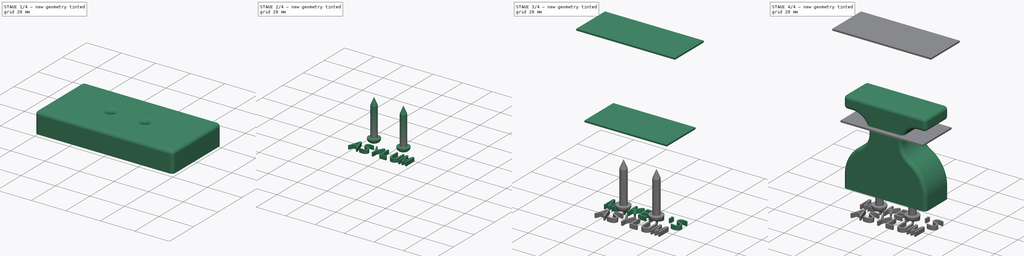
[diagram: build sequence overview — one tinted view per stage of 4, left to right]
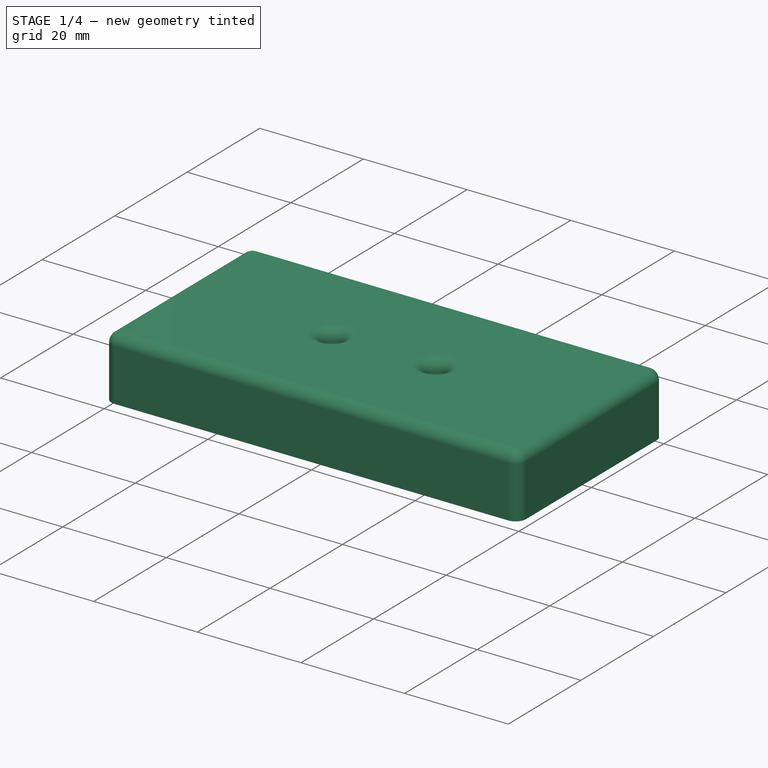
[diagram: stage 1 of 4 — iso view after this stage's code; geometry added in this stage tinted green]
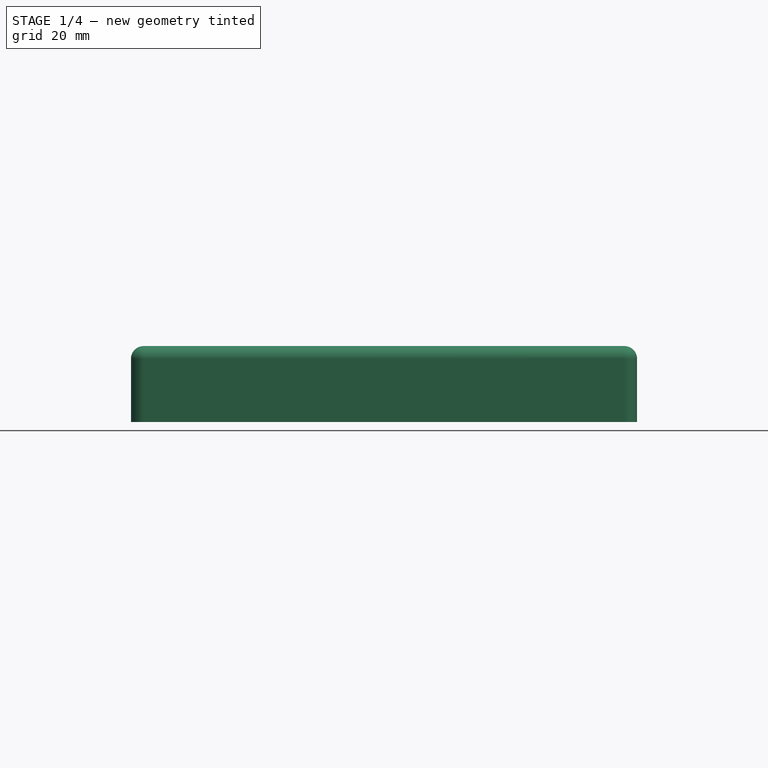
[diagram: stage 1 of 4 — front view after this stage's code; geometry added in this stage tinted green]
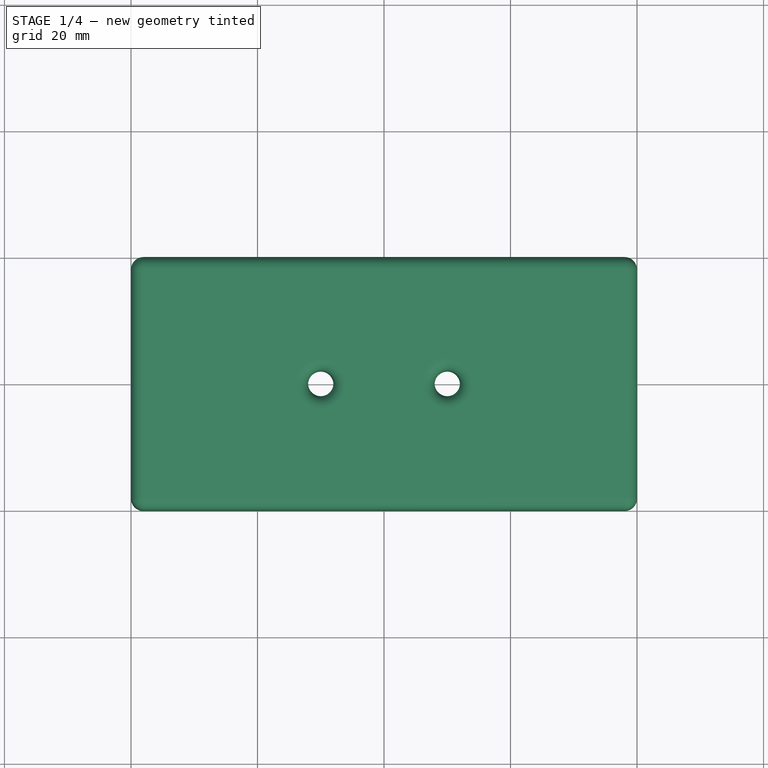
[diagram: stage 1 of 4 — top view after this stage's code; geometry added in this stage tinted green]
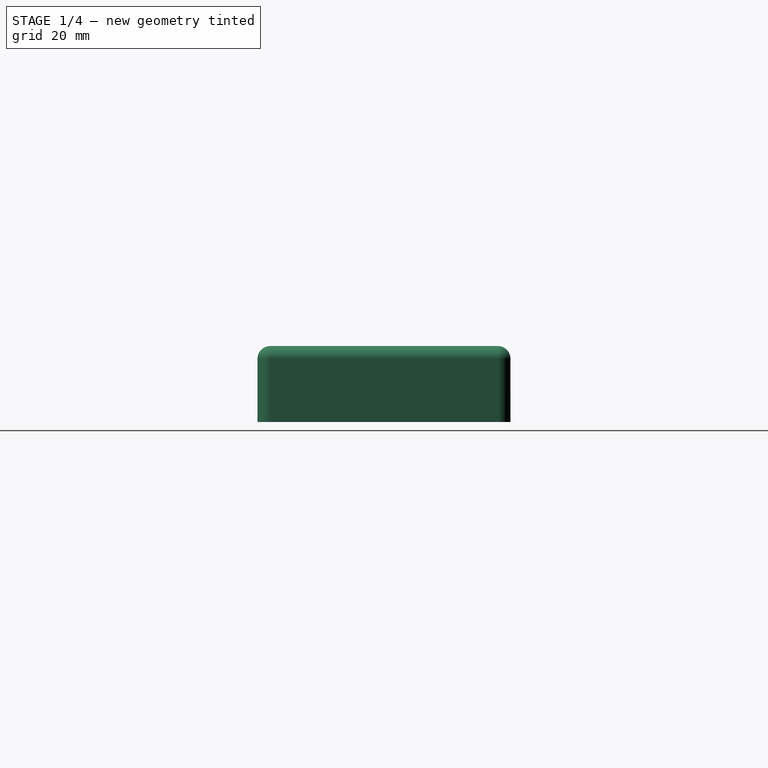
[diagram: stage 1 of 4 — right view after this stage's code; geometry added in this stage tinted green]
FCSTD DOCUMENT  (FreeCAD 1.0R39285 (Git))
Label: Woodshop_stamp_template_01
License: CERN Open Hardware Licence permissive
LicenseURL: https://cern-ohl.web.cern.ch/
objects: Sketcher::SketchObject×6, TechDraw::DrawProjGroupItem×5, App::DocumentObjectGroupPython×5, PartDesign::Pad×4, PartDesign::Body×4, Part::Feature×4, TechDraw::DrawViewDimension×3, TechDraw::DrawSVGTemplate×2, TechDraw::DrawProjGroup×2, TechDraw::DrawViewImage×2, TechDraw::DrawPage×2, PartDesign::Pocket×2, PartDesign::Fillet×2, PartDesign::SubShapeBinder×2, Part::Part2DObjectPython×2, Part::Extrusion×2, Part::FeaturePython×2, TechDraw::DrawViewAnnotation×1, PartDesign::Chamfer×1, PartDesign::Mirrored×1
note: 63 computed .brp shape members not serialized (recipe doc carries the construction recipe); baked Part::Feature solids carry a one-line shape summary decoded from their .brp

FEATURE [TechDraw::DrawSVGTemplate] Template
  Height = 210
  Orientation = 1
  Template = <path>
  Width = 297
FEATURE [TechDraw::DrawProjGroupItem] View  label="Front"
  CoarseView = false
  Direction = (0,-1,0)
  Focus = 100
  HardHidden = false
  IsoCount = 0
  IsoHidden = false
  IsoVisible = false
  LockPosition = true
  Perspective = false
  Rotation = 0
  RotationVector = (1,0,0)
  ScaleType = 2
  ScrubCount = 1
  SeamHidden = false
  SeamVisible = false
  SmoothHidden = false
  SmoothVisible = true
  Type = 0
  X = 0
  XDirection = (1,0,0)
  Y = 0
FEATURE [TechDraw::DrawProjGroupItem] ProjItem  label="Top"
  CoarseView = false
  Direction = (0,0,1)
  Focus = 100
  HardHidden = false
  IsoCount = 0
  IsoHidden = false
  IsoVisible = false
  LockPosition = false
  Perspective = false
  Rotation = 0
  RotationVector = (1,0,0)
  ScaleType = 0
  ScrubCount = 1
  SeamHidden = false
  SeamVisible = false
  SmoothHidden = false
  SmoothVisible = true
  Type = 4
  X = 0
  XDirection = (1,0,0)
  Y = 40
FEATURE [TechDraw::DrawProjGroup] ProjGroup
  Anchor = -> View
  AutoDistribute = true
  LockPosition = false
  ProjectionType = 1
  Rotation = 0
  ScaleType = 0
  Views = -> [View,ProjItem]
  X = 103
  Y = 81.3077
  spacingX = 40
  spacingY = 40
FEATURE [TechDraw::DrawViewDimension] Dimension
  AngleOverride = false
  Arbitrary = false
  ArbitraryTolerances = false
  BoxCorners = (2) [(-40,-20,0),(40,20,0)]
  EqualTolerance = true
  ExtensionAngle = 0
  FormatSpec = %.2w
  FormatSpecOverTolerance = %+.2w
  FormatSpecUnderTolerance = %+.2w
  Inverted = false
  LineAngle = 0
  LockPosition = false
  MeasureType = 1
  OverTolerance = 2
  References2D = -> [ProjItem]
  Rotation = 0
  ScaleType = 0
  TheoreticalExact = false
  Type = 1
  UnderTolerance = -2
  X = 0
  Y = 45
FEATURE [TechDraw::DrawViewDimension] Dimension001
  AngleOverride = false
  Arbitrary = false
  ArbitraryTolerances = false
  BoxCorners = (2) [(-40,-20,0),(40,20,0)]
  EqualTolerance = true
  ExtensionAngle = 0
  FormatSpec = %.2w
  FormatSpecOverTolerance = %+.2w
  FormatSpecUnderTolerance = %+.2w
  Inverted = false
  LineAngle = 0
  LockPosition = false
  MeasureType = 1
  OverTolerance = 2
  References2D = -> [ProjItem]
  Rotation = 0
  ScaleType = 0
  TheoreticalExact = false
  Type = 2
  UnderTolerance = -2
  X = -65.94
  Y = 0
FEATURE [TechDraw::DrawViewDimension] Dimension002
  AngleOverride = false
  Arbitrary = false
  ArbitraryTolerances = false
  BoxCorners = (2) [(-40,-6,0),(40,6,0)]
  EqualTolerance = true
  ExtensionAngle = 0
  FormatSpec = %.2w
  FormatSpecOverTolerance = %+.2w
  FormatSpecUnderTolerance = %+.2w
  Inverted = false
  LineAngle = 0
  LockPosition = false
  MeasureType = 1
  OverTolerance = 0
  References2D = -> [View]
  Rotation = 0
  ScaleType = 0
  TheoreticalExact = false
  Type = 2
  UnderTolerance = 0
  X = -66.2299
  Y = 19.3846
FEATURE [TechDraw::DrawViewAnnotation] Annotation
  Font = osifont
  LineSpace = 100
  LockPosition = false
  MaxWidth = -1
  Rotation = 0
  ScaleType = 0
  Text = Height shown is approximate
  TextSize = 5
  TextStyle = 0
  X = 91.4231
  Y = 107.692
FEATURE [TechDraw::DrawViewImage] ActiveView
  Height = 105
  ImageFile = <userpath>/.cache/FreeCAD/Cache/FreeCAD_Doc_12b3fde3-cc2a-4a14-b181-dc7dc96a330b_da39a3_870397/PageActiveViewaZvYs0.png
  LockPosition = false
  Rotation = 0
  Scale = 1.5
  ScaleType = 2
  Width = 125
  X = 216.615
  Y = 128.962
FEATURE [TechDraw::DrawPage] Page
  KeepUpdated = true
  NextBalloonIndex = 1
  ProjectionType = 0
  Template = -> Template
  Views = -> [ProjGroup,Dimension,Dimension001,Dimension002,Annotation,ActiveView]
FEATURE [Sketcher::SketchObject] Sketch
  ArcFitTolerance = 1e-06
  AttachmentSupport = -> [XY_Plane]
  FullyConstrained = true
  MakeInternals = false
  MapMode = 5
  sketch-geometry (5):
    g0: LineSegment StartX=-40 StartY=-20 StartZ=0 EndX=40 EndY=-20 EndZ=0
    g1: LineSegment StartX=40 StartY=-20 StartZ=0 EndX=40 EndY=20 EndZ=0
    g2: LineSegment StartX=40 StartY=20 StartZ=0 EndX=-40 EndY=20 EndZ=0
    g3: LineSegment StartX=-40 StartY=20 StartZ=0 EndX=-40 EndY=-20 EndZ=0
    g4: GeomPoint [constr] X=0 Y=0 Z=0
  constraints (12):
    c: Coincident(g0,g1)
    c: Coincident(g1,g2)
    c: Coincident(g2,g3)
    c: Coincident(g3,g0)
    c: Horizontal(g0)
    c: Horizontal(g2)
    c: Vertical(g1)
    c: Vertical(g3)
    c: Symmetric(g2,g0,g4)
    c: Distance(g1,g3) = 80
    c: Distance(g0,g2) = 40
    c: Coincident(g4,g-1)
FEATURE [PartDesign::Pad] Pad
  Direction = (0,0,1)
  Length = 12
  Length2 = 10
  Profile = -> Sketch
  ReferenceAxis = -> Sketch [N_Axis]
  Refine = true
  Reversed = true
  Suppressed = false
  Type = 0
FEATURE [Sketcher::SketchObject] Sketch001
  ArcFitTolerance = 1e-06
  AttachmentSupport = -> [Pad]
  FullyConstrained = true
  MakeInternals = false
  MapMode = 5
  sketch-geometry (2):
    g0: Circle CenterX=-10 CenterY=0 CenterZ=0 NormalX=0 NormalY=0 NormalZ=1 AngleXU=0 Radius=2
    g1: Circle CenterX=10 CenterY=0 CenterZ=0 NormalX=0 NormalY=0 NormalZ=1 AngleXU=0 Radius=2
  constraints (5):
    c: PointOnObject(g0,g-1)
    c: Symmetric(g1,g0,g-1)
    c: Equal(g0,g1)
    c: Diameter(g0) = 4
    c: DistanceX(g0,g1) = 20
FEATURE [PartDesign::Pocket] Pocket
  BaseFeature = -> Pad
  Direction = (0,0,-1)
  Length = 5
  Length2 = 5
  Profile = -> Sketch001
  ReferenceAxis = -> Sketch001 [N_Axis]
  Refine = true
  Suppressed = false
  Type = 1
FEATURE [PartDesign::Chamfer] Chamfer
  Angle = 45
  Base = -> Pocket [Edge15,Edge16]
  BaseFeature = -> Pocket
  ChamferType = 0
  FlipDirection = false
  Refine = true
  Size = 3
  Size2 = 1
  SupportTransform = false
  Suppressed = false
  UseAllEdges = false
FEATURE [PartDesign::Body] Body002  label="DoubleTape"
  AllowCompound = false
  Group = -> [Binder,Sketch004,Pad002]
  Origin = -> Origin002
  Placement = pos=(0,0,-50) rot=(0,0,1;0rad)
  Tip = -> Pad002
FEATURE [PartDesign::Fillet] Fillet001
  Base = -> Chamfer [Face9,Edge9,Edge10,Edge14,Edge12]
  BaseFeature = -> Chamfer
  Radius = 2
  Refine = true
  SupportTransform = false
  Suppressed = false
  UseAllEdges = false
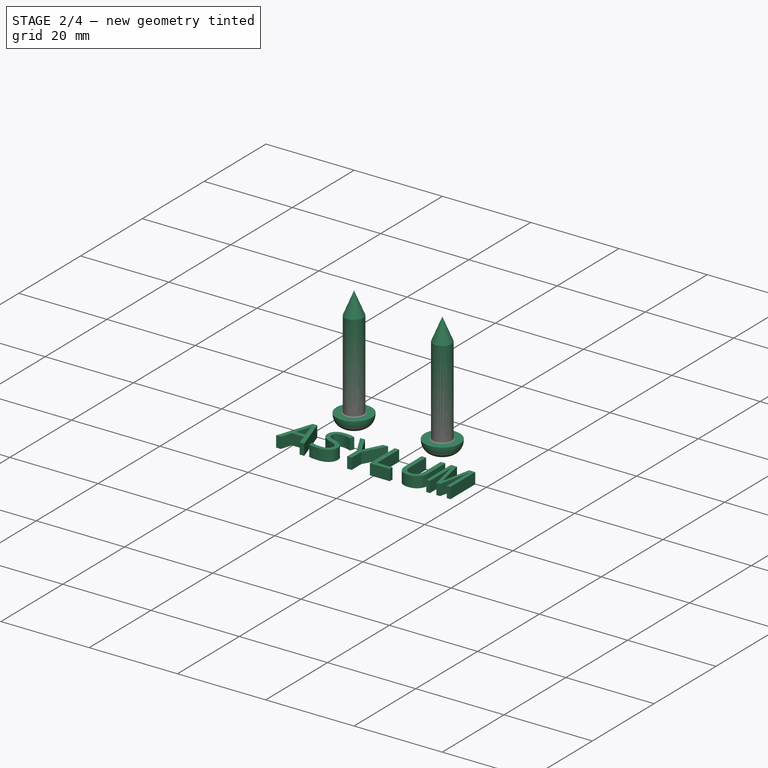
[diagram: stage 2 of 4 — iso view after this stage's code; geometry added in this stage tinted green]
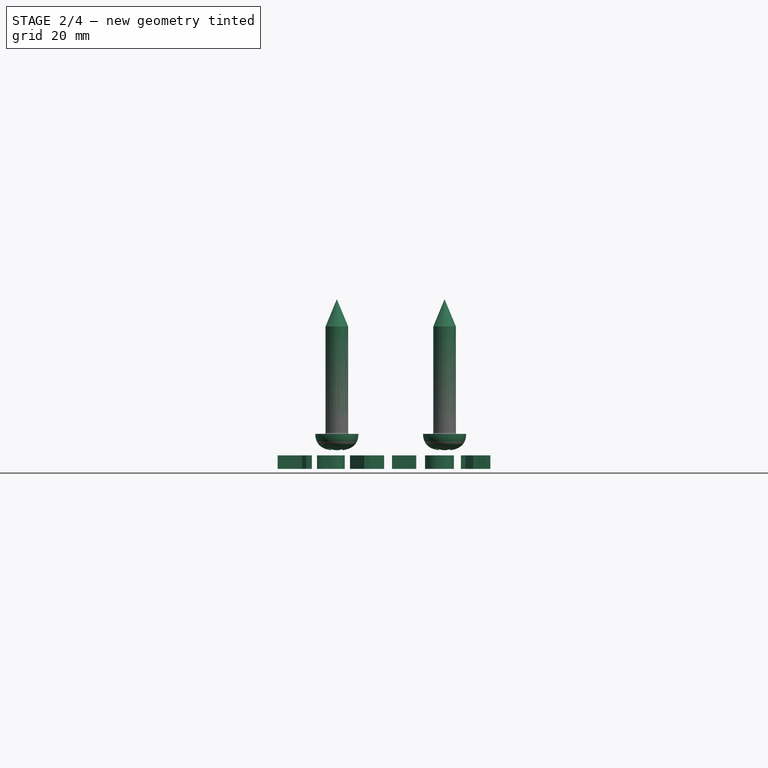
[diagram: stage 2 of 4 — front view after this stage's code; geometry added in this stage tinted green]
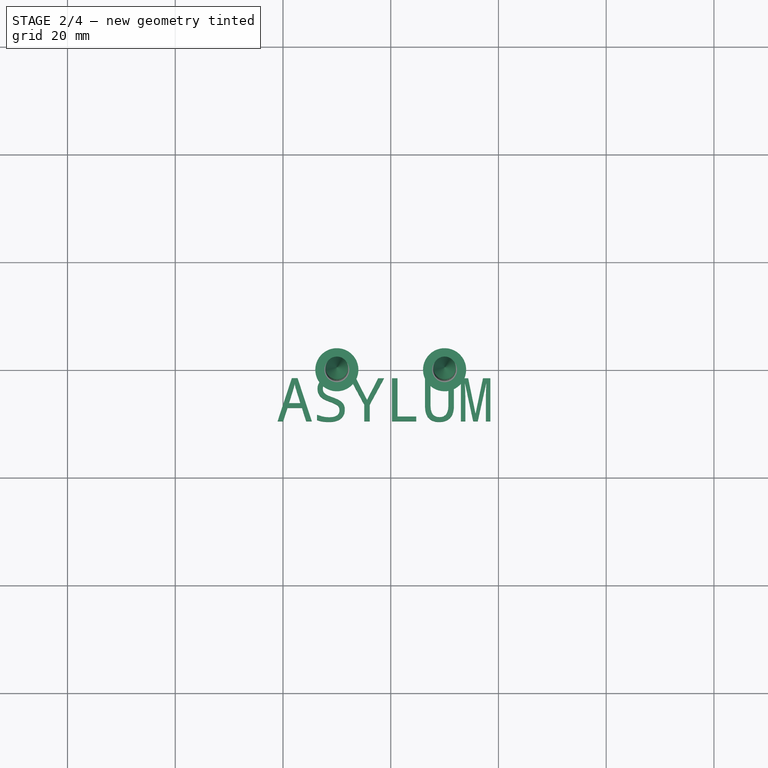
[diagram: stage 2 of 4 — top view after this stage's code; geometry added in this stage tinted green]
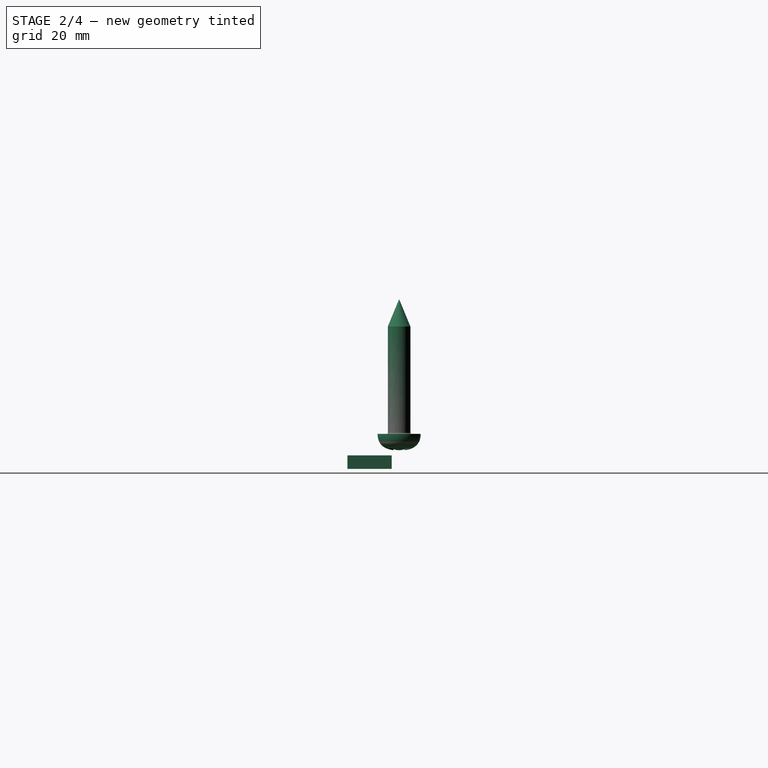
[diagram: stage 2 of 4 — right view after this stage's code; geometry added in this stage tinted green]
FEATURE [Part::Part2DObjectPython] ShapeString001  # Draft 2D object (typed FeaturePython)
  FontFile = <userpath>/Downloads/fonts/Droid_Sans_Mono/DroidSansMono.ttf
  Fuse = false
  Justification = 6
  JustificationReference = 0
  KeepLeftMargin = false
  MakeFace = true
  ObliqueAngle = 0
  Placement = pos=(-21,-9.5,-15.5) rot=(0,0,1;0rad)
  ScaleToSize = true
  Size = 8
  String = ASYLUM
  Tracking = 0
FEATURE [Part::Extrusion] Extrude001
  Base = -> ShapeString001
  Dir = (0,0,1)
  DirMode = 2
  FaceMakerClass = Part::FaceMakerBullseye
  FaceMakerMode = 3
  LengthFwd = 2.5
  LengthRev = 0
  Solid = false
  Symmetric = false
FEATURE [Part::FeaturePython] Screw  label="ST4.2x25-Screw"  # WARN: FeaturePython — macro-defined, semantics opaque (R4)
  BaseObject = -> Body [Fillet001.Edge28]
  Diameter = 4
  Invert = true
  LeftHanded = false
  Length = 5
  LengthCustom = 25
  MatchOuter = false
  OffsetAngle = 0
  Placement = pos=(-10,0,-9) rot=(-1,0,0;3.14159rad)
  Thread = false
  Type = 81
FEATURE [Part::FeaturePython] Screw001  label="ST4.2x25-Screw001"  # WARN: FeaturePython — macro-defined, semantics opaque (R4)
  BaseObject = -> Body [Fillet001.Edge30]
  Diameter = 4
  Invert = true
  LeftHanded = false
  Length = 5
  LengthCustom = 25
  MatchOuter = false
  OffsetAngle = 0
  Placement = pos=(10,0,-9) rot=(-1,0,0;3.14159rad)
  Thread = false
  Type = 81
FEATURE [Part::Feature] trajectory_line
  shape: bbox 2e-07 x 2e-07 x 100 mm, 0 faces, 0 solids (baked)
FEATURE [App::DocumentObjectGroupPython] SimpleGroup  # scripted group (container) (typed FeaturePython)
  AnimationStepTime = 0
  AnimationSteps = 20
  Distance = 100
  Group = -> [trajectory_line]
  Revolutions = 0
  dir_vectors = (1) [(0,0,-1)]
  rot_centers = (1) [(-3.60822e-16,5.92119e-17,86)]
  rot_vectors = (1) [(0,0,-1)]
FEATURE [Part::Feature] trajectory_line001
  shape: bbox 2e-07 x 2e-07 x 70 mm, 0 faces, 0 solids (baked)
FEATURE [App::DocumentObjectGroupPython] SimpleGroup001  # scripted group (container) (typed FeaturePython)
  AnimationStepTime = 0
  AnimationSteps = 20
  Distance = 70
  Group = -> [trajectory_line001]
  Revolutions = 0
  dir_vectors = (1) [(0,0,-1)]
  rot_centers = (1) [(-9.71445e-17,0,37)]
  rot_vectors = (1) [(0,0,-1)]
FEATURE [Part::Feature] trajectory_line002
  shape: bbox 20 x 2e-07 x 50 mm, 0 faces, 0 solids (baked)
FEATURE [App::DocumentObjectGroupPython] BoltGroup  # scripted group (container) (typed FeaturePython)
  AnimationStepTime = 0
  AnimationSteps = 20
  Distance = -50
  Group = -> [trajectory_line002]
  Revolutions = 0
  dir_vectors = (2) [(0,0,1),(0,0,1)]
  rot_centers = (2) [(10,0,-9),(-10,0,-9)]
  rot_vectors = (2) [(0,0,1),(0,0,1)]
FEATURE [Part::Feature] trajectory_line003
  shape: bbox 2e-07 x 2e-07 x 20 mm, 0 faces, 0 solids (baked)
FEATURE [App::DocumentObjectGroupPython] SimpleGroup002  # scripted group (container) (typed FeaturePython)
  AnimationStepTime = 0
  AnimationSteps = 20
  Distance = -50
  Group = -> [trajectory_line003]
  Revolutions = 0
  dir_vectors = (1) [(0,-4.4e-16,-1)]
  rot_centers = (1) [(1.05471e-15,-2.69925e-17,5.77078e-32)]
  rot_vectors = (1) [(0,-4.4e-16,-1)]
FEATURE [App::DocumentObjectGroupPython] ExplodedAssembly  # scripted group (container) (typed FeaturePython)
  AnimationStep = 0
  CurrentTrajectory = 0
  Group = -> [SimpleGroup,SimpleGroup001,BoltGroup,SimpleGroup002]
  InAnimation = false
  RemoveAllTrajectories = false
  ResetAnimation = false
note: 2 file-system paths scrubbed to <path> (originals preserved in the JSON sidecar)
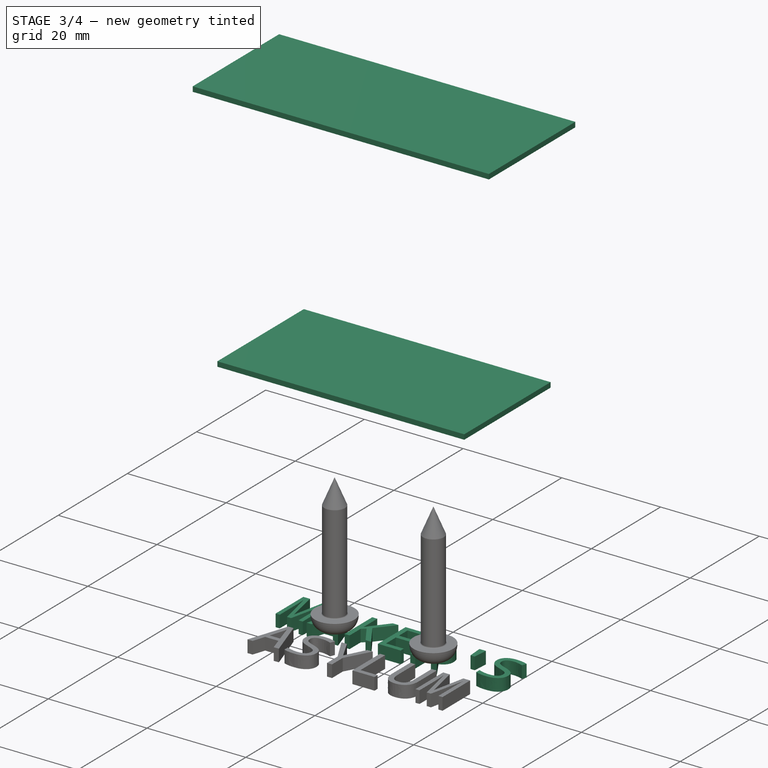
[diagram: stage 3 of 4 — iso view after this stage's code; geometry added in this stage tinted green]
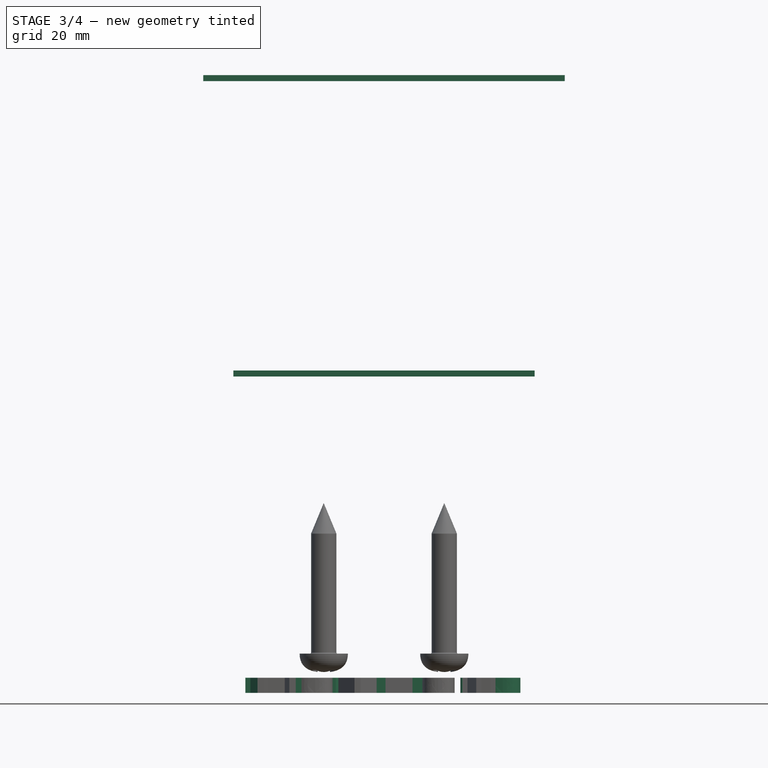
[diagram: stage 3 of 4 — front view after this stage's code; geometry added in this stage tinted green]
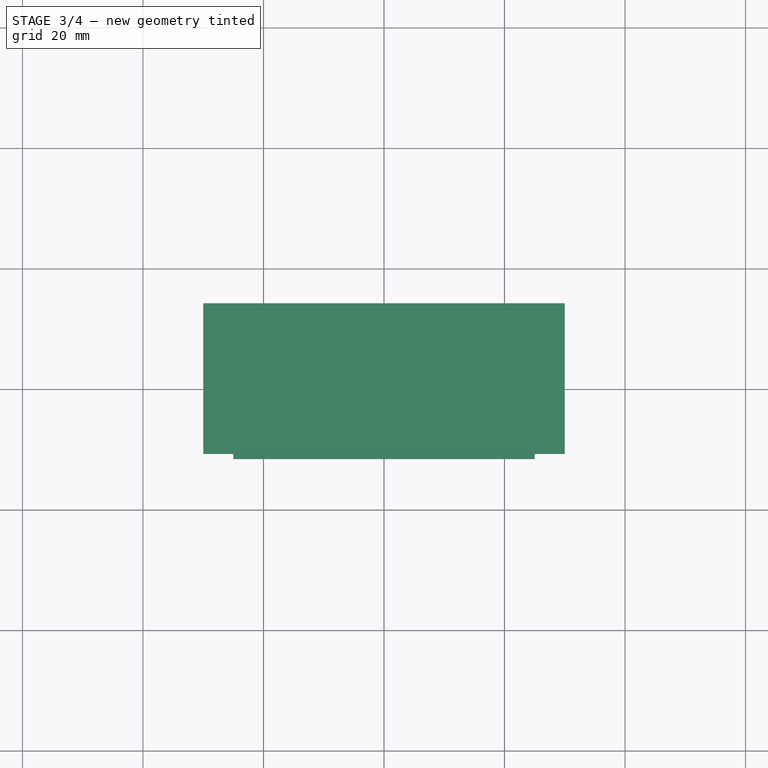
[diagram: stage 3 of 4 — top view after this stage's code; geometry added in this stage tinted green]
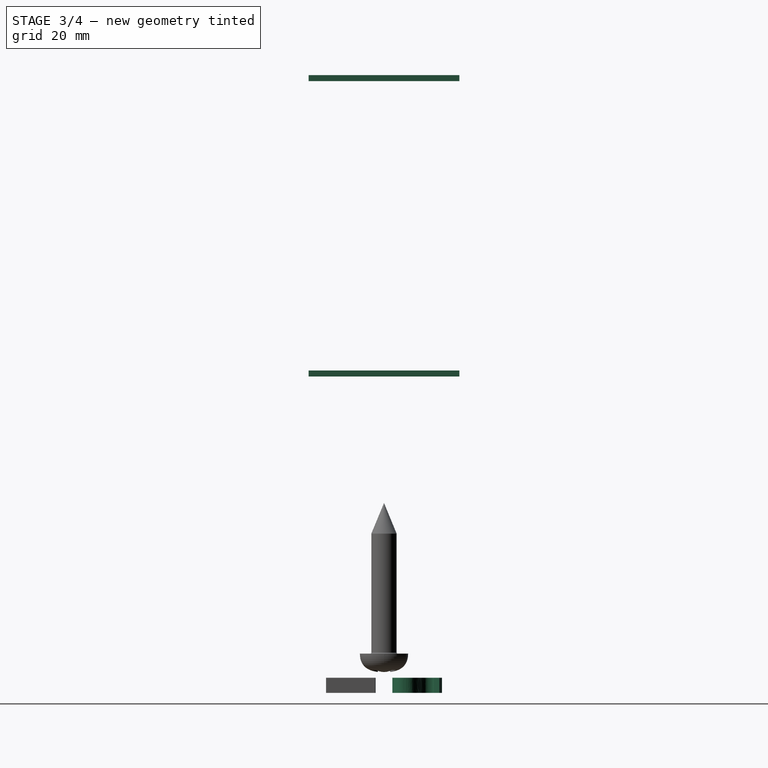
[diagram: stage 3 of 4 — right view after this stage's code; geometry added in this stage tinted green]
FEATURE [PartDesign::Body] Body001  label="Handle"
  AllowCompound = false
  Group = -> [Sketch002,Pad001,Mirrored,Fillet,Sketch003,Pocket001]
  Origin = -> Origin001
  Tip = -> Pocket001
FEATURE [PartDesign::SubShapeBinder] Binder
  BindCopyOnChange = 0
  BindMode = 0
  ClaimChildren = false
  Context = -> Body002 [Binder.]
  Fuse = false
  MakeFace = true
  OffsetFill = false
  OffsetIntersection = false
  OffsetJoinType = 0
  OffsetOpenResult = false
  PartialLoad = false
  Refine = true
  Relative = true
  Support = -> [Body]
  _Version = 2
FEATURE [Sketcher::SketchObject] Sketch004
  ArcFitTolerance = 1e-06
  AttachmentSupport = -> [Binder]
  FullyConstrained = true
  MakeInternals = false
  MapMode = 5
  Placement = pos=(0,0,38) rot=(1,0,0;3.14159rad)
  sketch-geometry (5):
    g0: LineSegment StartX=-25 StartY=-12.5 StartZ=0 EndX=25 EndY=-12.5 EndZ=0
    g1: LineSegment StartX=25 StartY=-12.5 StartZ=0 EndX=25 EndY=12.5 EndZ=0
    g2: LineSegment StartX=25 StartY=12.5 StartZ=0 EndX=-25 EndY=12.5 EndZ=0
    g3: LineSegment StartX=-25 StartY=12.5 StartZ=0 EndX=-25 EndY=-12.5 EndZ=0
    g4: GeomPoint [constr] X=0 Y=0 Z=0
  constraints (12):
    c: Coincident(g0,g1)
    c: Coincident(g1,g2)
    c: Coincident(g2,g3)
    c: Coincident(g3,g0)
    c: Horizontal(g0)
    c: Horizontal(g2)
    c: Vertical(g1)
    c: Vertical(g3)
    c: Symmetric(g2,g0,g4)
    c: Distance(g1,g3) = 50
    c: Distance(g0,g2) = 25
    c: Coincident(g4,g-1)
FEATURE [PartDesign::Pad] Pad002
  Direction = (0,0,-1)
  Length = 1
  Length2 = 10
  Profile = -> Sketch004
  ReferenceAxis = -> Sketch004 [N_Axis]
  Refine = true
  Suppressed = false
  Type = 0
FEATURE [PartDesign::Body] Body  label="Block"
  AllowCompound = false
  Group = -> [Sketch,Pad,Sketch001,Pocket,Chamfer,Fillet001]
  Origin = -> Origin
  Tip = -> Fillet001
FEATURE [TechDraw::DrawSVGTemplate] Template001
  Height = 210
  Orientation = 1
  Template = <path>
  Width = 297
FEATURE [TechDraw::DrawProjGroupItem] View001  label="Front001"
  CoarseView = false
  Direction = (0,-1,0)
  Focus = 100
  HardHidden = false
  IsoCount = 0
  IsoHidden = false
  IsoVisible = false
  LockPosition = true
  Perspective = false
  Rotation = 0
  RotationVector = (1,0,0)
  ScaleType = 2
  ScrubCount = 1
  SeamHidden = false
  SeamVisible = false
  SmoothHidden = false
  SmoothVisible = true
  Source = -> [Body001]
  Type = 0
  X = 0
  XDirection = (1,0,0)
  Y = 0
FEATURE [TechDraw::DrawProjGroupItem] ProjItem002  label="Right"
  CoarseView = false
  Direction = (1,-1e-16,0)
  Focus = 100
  HardHidden = false
  IsoCount = 0
  IsoHidden = false
  IsoVisible = false
  LockPosition = false
  Perspective = false
  Rotation = 0
  RotationVector = (1,0,0)
  ScaleType = 0
  ScrubCount = 1
  SeamHidden = false
  SeamVisible = false
  SmoothHidden = false
  SmoothVisible = true
  Source = -> [Body001]
  Type = 2
  X = 55
  XDirection = (1e-16,1,0)
  Y = 0
FEATURE [TechDraw::DrawViewImage] ActiveView001
  Height = 102.4
  ImageFile = <userpath>/.cache/FreeCAD/Cache/FreeCAD_Doc_12b3fde3-cc2a-4a14-b181-dc7dc96a330b_591a46_307861/Page001ActiveView001slE6j9.png
  LockPosition = false
  Rotation = 0
  ScaleType = 2
  Width = 128
  X = 228.058
  Y = 116.415
FEATURE [TechDraw::DrawProjGroupItem] ProjItem003  label="Bottom"
  CoarseView = false
  Direction = (0,0,-1)
  Focus = 100
  HardHidden = false
  IsoCount = 0
  IsoHidden = false
  IsoVisible = false
  LockPosition = false
  Perspective = false
  Rotation = 0
  RotationVector = (1,0,0)
  ScaleType = 0
  ScrubCount = 1
  SeamHidden = false
  SeamVisible = false
  SmoothHidden = false
  SmoothVisible = true
  Source = -> [Body001]
  Type = 5
  X = 0
  XDirection = (1,0,0)
  Y = -75.4904
FEATURE [TechDraw::DrawProjGroup] ProjGroup001
  Anchor = -> View001
  AutoDistribute = true
  LockPosition = false
  ProjectionType = 1
  Rotation = 0
  ScaleType = 0
  Source = -> [Body001]
  Views = -> [View001,ProjItem002,ProjItem003]
  X = 88.7938
  Y = 123.011
  spacingX = 20
  spacingY = 40
FEATURE [TechDraw::DrawPage] Page001
  KeepUpdated = true
  NextBalloonIndex = 1
  ProjectionType = 0
  Template = -> Template001
  Views = -> [ProjGroup001,ActiveView001]
FEATURE [PartDesign::SubShapeBinder] Binder001
  BindCopyOnChange = 0
  BindMode = 0
  ClaimChildren = false
  Context = -> Body003 [Binder001.]
  Fuse = false
  MakeFace = true
  OffsetFill = false
  OffsetIntersection = false
  OffsetJoinType = 0
  OffsetOpenResult = false
  PartialLoad = false
  Refine = true
  Relative = true
  Support = -> [Body002]
  _Version = 2
FEATURE [Sketcher::SketchObject] Sketch005
  ArcFitTolerance = 1e-06
  AttachmentSupport = -> [Binder001]
  FullyConstrained = true
  MakeInternals = false
  MapMode = 5
  Placement = pos=(0,0,87) rot=(1,0,0;3.14159rad)
  sketch-geometry (5):
    g0: LineSegment StartX=-30 StartY=-12.5 StartZ=0 EndX=30 EndY=-12.5 EndZ=0
    g1: LineSegment StartX=30 StartY=-12.5 StartZ=0 EndX=30 EndY=12.5 EndZ=0
    g2: LineSegment StartX=30 StartY=12.5 StartZ=0 EndX=-30 EndY=12.5 EndZ=0
    g3: LineSegment StartX=-30 StartY=12.5 StartZ=0 EndX=-30 EndY=-12.5 EndZ=0
    g4: GeomPoint [constr] X=0 Y=0 Z=0
  constraints (12):
    c: Coincident(g0,g1)
    c: Coincident(g1,g2)
    c: Coincident(g2,g3)
    c: Coincident(g3,g0)
    c: Horizontal(g0)
    c: Horizontal(g2)
    c: Vertical(g1)
    c: Vertical(g3)
    c: Symmetric(g2,g0,g4)
    c: Coincident(g4,g-1)
    c: DistanceX(g2,g2) = 60
    c: DistanceY(g3,g3) = 25
FEATURE [PartDesign::Pad] Pad003
  Direction = (0,0,-1)
  Length = 1
  Length2 = 10
  Profile = -> Sketch005
  ReferenceAxis = -> Sketch005 [N_Axis]
  Refine = true
  Suppressed = false
  Type = 0
FEATURE [PartDesign::Body] Body003  label="Body"
  AllowCompound = false
  Group = -> [Binder001,Sketch005,Pad003]
  Origin = -> Origin003
  Placement = pos=(0,0,-100) rot=(0,0,1;0rad)
  Tip = -> Pad003
FEATURE [Part::Part2DObjectPython] ShapeString  # Draft 2D object (typed FeaturePython)
  FontFile = <userpath>/Downloads/fonts/Droid_Sans_Mono/DroidSansMono.ttf
  Fuse = false
  Justification = 6
  JustificationReference = 0
  KeepLeftMargin = false
  MakeFace = true
  ObliqueAngle = 0
  Placement = pos=(-23,1.5,-15.5) rot=(0,0,1;0rad)
  ScaleToSize = true
  Size = 8
  String = MAKER'S
  Tracking = 0
FEATURE [Part::Extrusion] Extrude
  Base = -> ShapeString
  Dir = (0,0,1)
  DirMode = 2
  FaceMakerClass = Part::FaceMakerBullseye
  FaceMakerMode = 3
  LengthFwd = 2.5
  LengthRev = 0
  Solid = false
  Symmetric = false
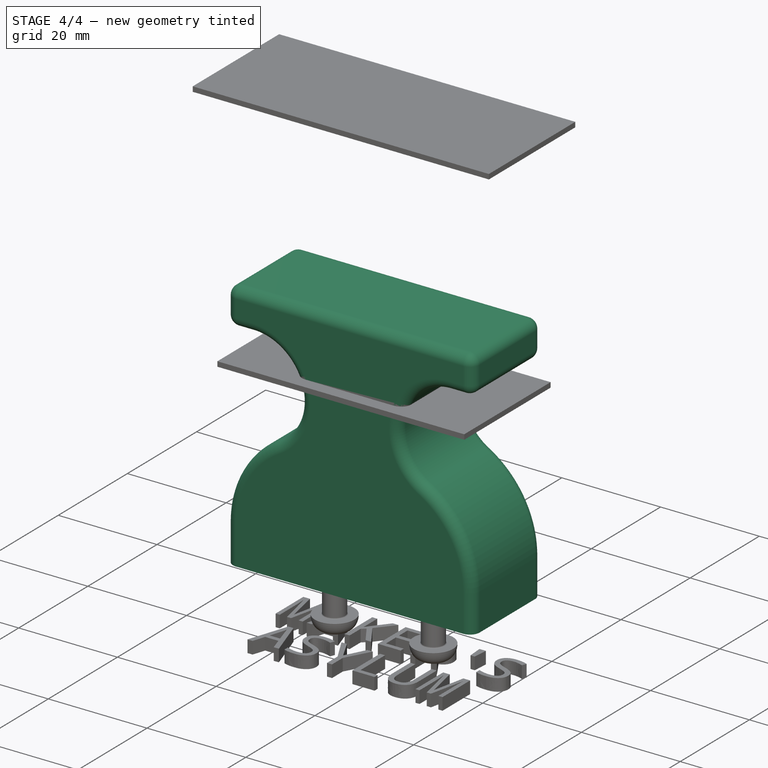
[diagram: stage 4 of 4 — iso view after this stage's code; geometry added in this stage tinted green]
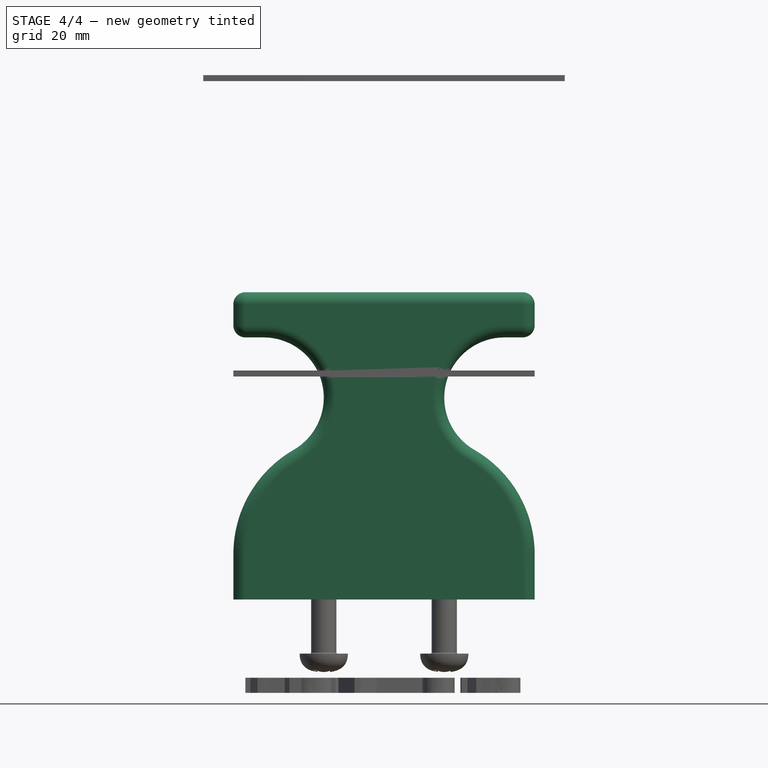
[diagram: stage 4 of 4 — front view after this stage's code; geometry added in this stage tinted green]
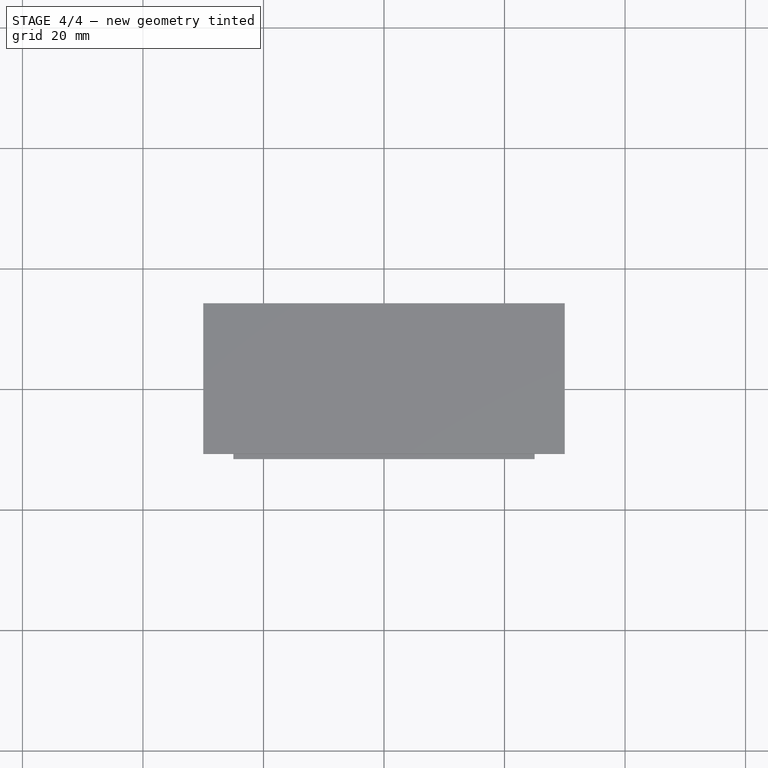
[diagram: stage 4 of 4 — top view after this stage's code; geometry added in this stage tinted green]
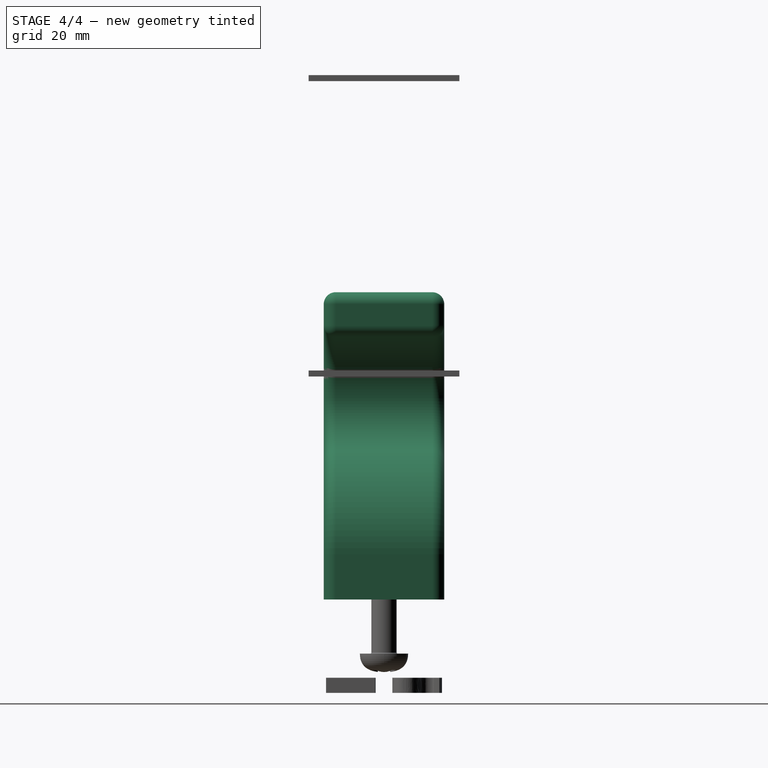
[diagram: stage 4 of 4 — right view after this stage's code; geometry added in this stage tinted green]
FEATURE [Sketcher::SketchObject] Sketch002
  ArcFitTolerance = 1e-06
  AttachmentSupport = -> [XZ_Plane001]
  FullyConstrained = true
  MakeInternals = false
  MapMode = 5
  Placement = pos=(0,0,0) rot=(1,0,0;1.5708rad)
  sketch-geometry (8):
    g0: LineSegment StartX=-25 StartY=0 StartZ=0 EndX=-25 EndY=7.5 EndZ=0
    g1: ArcOfCircle CenterX=-5 CenterY=7.5 CenterZ=0 NormalX=0 NormalY=0 NormalZ=1 AngleXU=0 Radius=20 StartAngle=2.0944 EndAngle=3.14159
    g2: ArcOfCircle CenterX=-20 CenterY=33.4808 CenterZ=0 NormalX=0 NormalY=0 NormalZ=1 AngleXU=0 Radius=10 StartAngle=5.23599 EndAngle=7.85398
    g3: LineSegment StartX=-20 StartY=43.4808 StartZ=0 EndX=-25 EndY=43.4808 EndZ=0
    g4: LineSegment StartX=-25 StartY=43.4808 StartZ=0 EndX=-25 EndY=50.9808 EndZ=0
    g5: LineSegment StartX=-25 StartY=50.9808 StartZ=0 EndX=0 EndY=50.9808 EndZ=0
    g6: LineSegment StartX=0 StartY=50.9808 StartZ=0 EndX=0 EndY=0 EndZ=0
    g7: LineSegment StartX=0 StartY=0 StartZ=0 EndX=-25 EndY=0 EndZ=0
  constraints (22):
    c: PointOnObject(g0,g-1)
    c: Vertical(g0)
    c: Tangent(g0,g1) = 1.5708
    c: Tangent(g1,g2) = 1.5708
    c: Horizontal(g3)
    c: Coincident(g3,g4)
    c: Vertical(g4)
    c: Coincident(g4,g5)
    c: PointOnObject(g5,g-2)
    c: Horizontal(g5)
    c: Coincident(g5,g6)
    c: Coincident(g6,g-1)
    c: Coincident(g6,g7)
    c: Coincident(g7,g0)
    c: DistanceX(g7,g7) = 25
    c: DistanceY(g0,g0) = 7.5
    c: Radius(g1) = 20
    c: Radius(g2) = 10
    c: DistanceX(g5,g5) = 25
    c: DistanceY(g4,g4) = 7.5
    c: Tangent(g2,g3) = -1.5708
    c: Distance(g3,g3) = 5
FEATURE [PartDesign::Pad] Pad001
  Direction = (0,-1,2e-16)
  Length = 20
  Length2 = 10
  Midplane = true
  Placement = pos=(0,0,0) rot=(1,0,0;1.5708rad)
  Profile = -> Sketch002
  ReferenceAxis = -> Sketch002 [N_Axis]
  Refine = true
  Suppressed = false
  Type = 0
FEATURE [PartDesign::Mirrored] Mirrored
  BaseFeature = -> Pad001
  MirrorPlane = -> Sketch002 [V_Axis]
  Originals = -> [Pad001]
  Placement = pos=(0,0,0) rot=(1,0,0;1.5708rad)
  Refine = true
  Suppressed = false
  TransformMode = 0
FEATURE [PartDesign::Fillet] Fillet
  Base = -> Mirrored [Face11,Face5,Face14,Edge31,Edge28,Edge25,Edge22,Edge21,Edge24,Edge27,Edge30,Edge3,Edge6,Edge9,Edge12,Edge15,Edge16,Edge13,Edge10,Edge7,Edge4]
  BaseFeature = -> Mirrored
  Placement = pos=(0,0,0) rot=(1,0,0;1.5708rad)
  Radius = 2
  Refine = true
  SupportTransform = false
  Suppressed = false
  UseAllEdges = false
FEATURE [Sketcher::SketchObject] Sketch003
  ArcFitTolerance = 1e-06
  AttachmentSupport = -> [Fillet]
  FullyConstrained = true
  MakeInternals = false
  MapMode = 5
  Placement = pos=(0,0,0) rot=(1,0,0;3.14159rad)
  sketch-geometry (2):
    g0: Circle CenterX=-10 CenterY=0 CenterZ=0 NormalX=0 NormalY=0 NormalZ=1 AngleXU=0 Radius=1
    g1: Circle CenterX=10 CenterY=0 CenterZ=0 NormalX=0 NormalY=0 NormalZ=1 AngleXU=0 Radius=1
  constraints (5):
    c: PointOnObject(g0,g-1)
    c: Equal(g0,g1)
    c: Diameter(g0) = 2
    c: Symmetric(g0,g1,g-1)
    c: DistanceX(g0,g-1) = 10
FEATURE [PartDesign::Pocket] Pocket001
  BaseFeature = -> Fillet
  Direction = (0,0,1)
  Length = 20
  Length2 = 5
  Placement = pos=(0,0,0) rot=(1,0,0;1.5708rad)
  Profile = -> Sketch003
  ReferenceAxis = -> Sketch003 [N_Axis]
  Refine = true
  Suppressed = false
  Type = 0
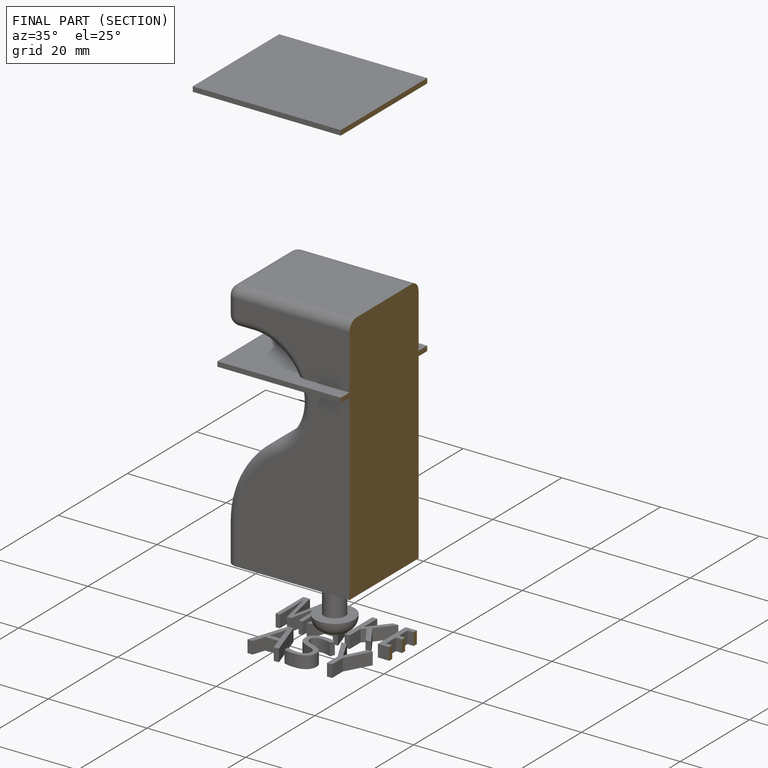
[diagram: finished part — half-section view (interior)]
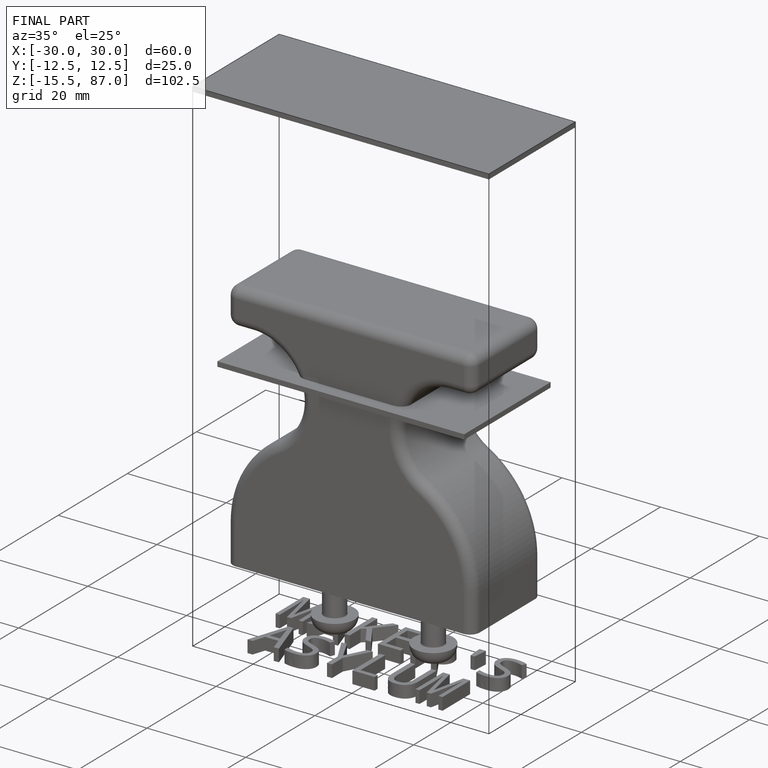
[diagram: finished part — iso view with bounding-box wireframe]
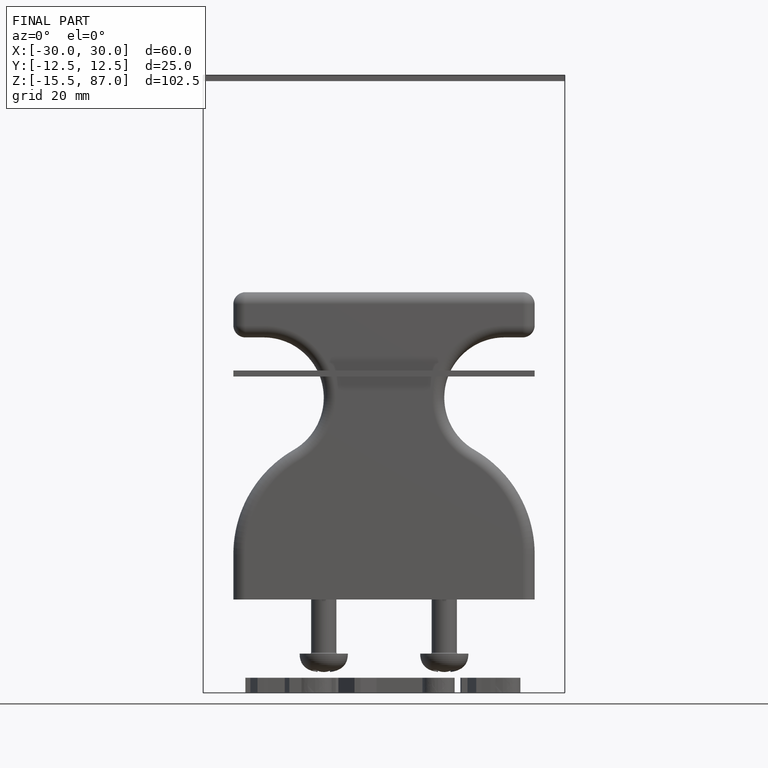
[diagram: finished part — front view with bounding-box wireframe]
